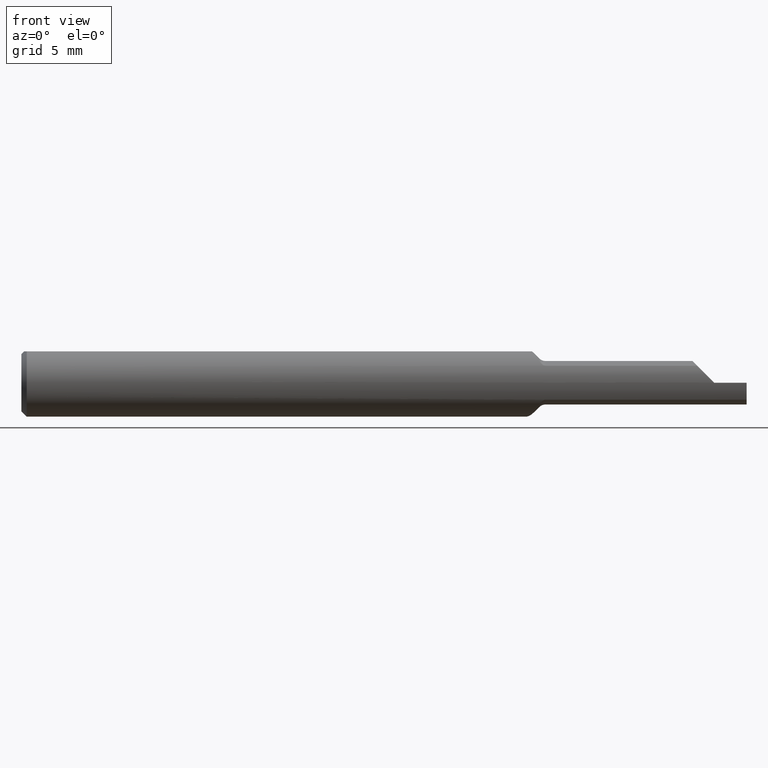
[diagram: clean part render]
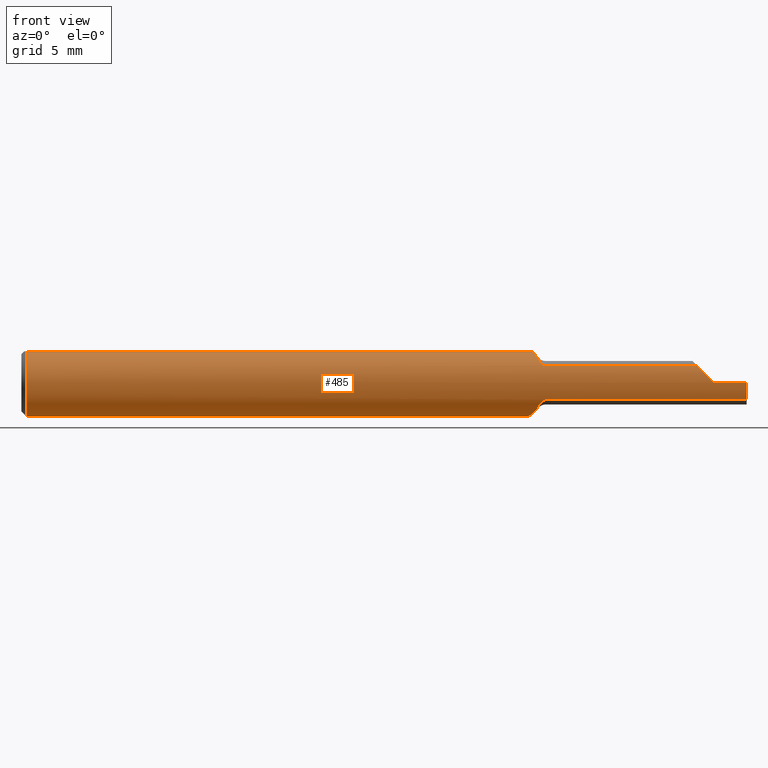
[diagram: same view with one face highlighted and labeled with its STEP entity id]
A machine part, front view. The second image highlights one B-rep face of the part: STEP entity #485.
In plain terms, the highlighted cylindrical surface (edge-blend (fillet) strip) has radius 2.3774 mm, axis along (-1, -0, -0).
Its self-contained STEP definition (entity closure, byte-faithful):
#1 = CARTESIAN_POINT ( 'NONE',  ( 1.401162578112211898, -0.02137516006684752473, -0.09132136495557872935 ) ) ;
#2 = CARTESIAN_POINT ( 'NONE',  ( 1.863470928347331190, -0.08098532110091748171, 0.04692907165266847758 ) ) ;
#7 = ORIENTED_EDGE ( 'NONE', *, *, #558, .F. ) ;
#9 = CARTESIAN_POINT ( 'NONE',  ( 1.373563078640440027, 0.04680750307691909640, 0.08129727678532755464 ) ) ;
#16 = B_SPLINE_CURVE_WITH_KNOTS ( 'NONE', 3,
 ( #386, #636, #788, #805 ),
 .UNSPECIFIED., .F., .F.,
 ( 4, 4 ),
 ( 5.729164479846337672E-07, 0.0002485545944389308645 ),
 .UNSPECIFIED. ) ;
#18 = CARTESIAN_POINT ( 'NONE',  ( 0.01499999999999997689, 0.000000000000000000, -0.09360000000000001652 ) ) ;
#22 = VERTEX_POINT ( 'NONE', #18 ) ;
#59 = CARTESIAN_POINT ( 'NONE',  ( 1.385742326738735430, 0.01455546558514134343, -0.09266009913134311271 ) ) ;
#63 = CARTESIAN_POINT ( 'NONE',  ( 1.427677669529663351, -0.07029385114728027573, -0.06180400060581841409 ) ) ;
#64 = CARTESIAN_POINT ( 'NONE',  ( 1.358300457160753538, 0.09202461176102584572, -0.01829547249540556045 ) ) ;
#68 = CARTESIAN_POINT ( 'NONE',  ( 1.359020195642278050, 0.08977100142499548630, 0.02728114714779963229 ) ) ;
#79 = CARTESIAN_POINT ( 'NONE',  ( 1.393265014012250669, -0.003655424042671530805, -0.09371940383682354769 ) ) ;
#83 = CARTESIAN_POINT ( 'NONE',  ( 1.412174883036604989, -0.04359999999999999987, -0.08282511696339464602 ) ) ;
#93 = ORIENTED_EDGE ( 'NONE', *, *, #941, .F. ) ;
#97 = VERTEX_POINT ( 'NONE', #852 ) ;
#104 = CIRCLE ( 'NONE', #985, 0.09360000000000001652 ) ;
#113 = CARTESIAN_POINT ( 'NONE',  ( 1.377701525703422858, 0.03551619348973097945, 0.08659999999999998255 ) ) ;
#116 = DIRECTION ( 'NONE',  ( 0.000000000000000000, 0.000000000000000000, -1.000000000000000000 ) ) ;
#123 = VECTOR ( 'NONE', #859, 39.37007874015748143 ) ;
#128 = CARTESIAN_POINT ( 'NONE',  ( 1.412174883036604989, -0.04360000000000000681, 0.08282511696339464602 ) ) ;
#141 = CARTESIAN_POINT ( 'NONE',  ( 1.367491920919019943, 0.06414576699549900951, -0.06845644935455037772 ) ) ;
#145 = CARTESIAN_POINT ( 'NONE',  ( 1.376719064373899792, 0.03812469162702807057, -0.08571015254603478462 ) ) ;
#149 = CARTESIAN_POINT ( 'NONE',  ( 1.365939244946421383, 0.06872653992798641309, -0.06386219844968353543 ) ) ;
#156 = ORIENTED_EDGE ( 'NONE', *, *, #902, .T. ) ;
#158 = CARTESIAN_POINT ( 'NONE',  ( 1.369879818681998040, 0.05722188270721517700, 0.07433603228884130831 ) ) ;
#161 = CARTESIAN_POINT ( 'NONE',  ( 1.445355339059327227, -0.08098532110091744007, 0.04692907165266853309 ) ) ;
#162 = CARTESIAN_POINT ( 'NONE',  ( 1.445355339059327227, -0.08098532110091744007, -0.04692907165266853309 ) ) ;
#169 = VECTOR ( 'NONE', #857, 39.37007874015748143 ) ;
#174 = EDGE_CURVE ( 'NONE', #854, #384, #423, .T. ) ;
#178 = ORIENTED_EDGE ( 'NONE', *, *, #921, .F. ) ;
#180 = CARTESIAN_POINT ( 'NONE',  ( 1.910000000000000142, -0.09359999999999998876, -6.429183357567478880E-17 ) ) ;
#183 = CARTESIAN_POINT ( 'NONE',  ( 1.692500000000000115, -0.08098532110091744007, -0.04692907165266853309 ) ) ;
#184 = ORIENTED_EDGE ( 'NONE', *, *, #782, .T. ) ;
#197 = CARTESIAN_POINT ( 'NONE',  ( 1.417429827598531089, -0.05334323113763462382, 0.07712124314794462088 ) ) ;
#198 = DIRECTION ( 'NONE',  ( 0.000000000000000000, 0.000000000000000000, 1.000000000000000000 ) ) ;
#203 = AXIS2_PLACEMENT_3D ( 'NONE', #521, #856, #116 ) ;
#215 = VERTEX_POINT ( 'NONE', #2 ) ;
#217 = CARTESIAN_POINT ( 'NONE',  ( 1.398495826740103309, -0.01554707447101391984, -0.09249312004605585169 ) ) ;
#221 = CARTESIAN_POINT ( 'NONE',  ( 1.406623605259440080, -0.03278656602106057305, -0.08787223824268955430 ) ) ;
#228 = DIRECTION ( 'NONE',  ( -1.000000000000000000, -0.000000000000000000, -0.000000000000000000 ) ) ;
#235 = LINE ( 'NONE', #979, #252 ) ;
#240 = CARTESIAN_POINT ( 'NONE',  ( 1.893560996053938350, -0.09352889250011661715, 0.01683900394606149126 ) ) ;
#242 = ORIENTED_EDGE ( 'NONE', *, *, #831, .T. ) ;
#243 = CARTESIAN_POINT ( 'NONE',  ( 1.361475077763426134, 0.08217488604661306317, 0.04527857650729982808 ) ) ;
#247 = CARTESIAN_POINT ( 'NONE',  ( 1.417431899142503671, -0.05334778958292699796, -0.07712048455225353760 ) ) ;
#252 = VECTOR ( 'NONE', #1055, 39.37007874015748143 ) ;
#253 = CARTESIAN_POINT ( 'NONE',  ( 1.440944544278904837, -0.08054755630905487129, 0.04769340736591577007 ) ) ;
#269 = DIRECTION ( 'NONE',  ( -1.000000000000000000, -0.000000000000000000, -0.000000000000000000 ) ) ;
#270 = LINE ( 'NONE', #870, #169 ) ;
#273 = VERTEX_POINT ( 'NONE', #468 ) ;
#274 = DIRECTION ( 'NONE',  ( 1.000000000000000000, -0.000000000000000000, -0.000000000000000000 ) ) ;
#275 = CARTESIAN_POINT ( 'NONE',  ( 1.427677669529663795, -0.07029385114728030348, 0.06180400060581841409 ) ) ;
#283 = EDGE_CURVE ( 'NONE', #497, #854, #235, .T. ) ;
#282 = B_SPLINE_CURVE_WITH_KNOTS ( 'NONE', 3,
 ( #161, #486, #253, #408, #660, #821, #833, #581 ),
 .UNSPECIFIED., .F., .F.,
 ( 4, 2, 2, 4 ),
 ( 0.000000000000000000, 0.0001696820906343262628, 0.0003393641812686525256, 0.0006787283625373182784 ),
 .UNSPECIFIED. ) ;
#287 = CARTESIAN_POINT ( 'NONE',  ( 1.440919469471275471, -0.08054306570030630996, -0.04770147238164971354 ) ) ;
#289 = FACE_OUTER_BOUND ( 'NONE', #919, .T. ) ;
#295 = DIRECTION ( 'NONE',  ( 1.000000000000000000, -0.000000000000000000, -0.000000000000000000 ) ) ;
#301 = CARTESIAN_POINT ( 'NONE',  ( 1.357730217382799420, 0.09381949476875170446, 0.001379171797657438147 ) ) ;
#313 = CARTESIAN_POINT ( 'NONE',  ( 1.362096236419457984, 0.08028148374112675789, -0.04856492361454641665 ) ) ;
#319 = CIRCLE ( 'NONE', #203, 0.09360000000000001652 ) ;
#322 = CARTESIAN_POINT ( 'NONE',  ( 1.877694541276184292, -0.08922756724162471398, 0.03270545872381525748 ) ) ;
#332 = VERTEX_POINT ( 'NONE', #494 ) ;
#333 = CARTESIAN_POINT ( 'NONE',  ( 1.412174883036604989, -0.04360000000000000681, 0.08282511696339464602 ) ) ;
#350 = LINE ( 'NONE', #775, #645 ) ;
#354 = VERTEX_POINT ( 'NONE', #569 ) ;
#362 = CARTESIAN_POINT ( 'NONE',  ( 2.000000000000000000, -0.09359999999999989162, -6.429183357567480113E-17 ) ) ;
#375 = CARTESIAN_POINT ( 'NONE',  ( 1.372725758621181180, 0.04914086561991816426, -0.07990555479593192123 ) ) ;
#380 = CARTESIAN_POINT ( 'NONE',  ( 1.357960659897338385, 0.09309458096140457717, -0.01172171954671197454 ) ) ;
#384 = VERTEX_POINT ( 'NONE', #926 ) ;
#386 = CARTESIAN_POINT ( 'NONE',  ( 1.408023520836405362, -0.03551619348973036189, 0.08659999999999998255 ) ) ;
#388 = VERTEX_POINT ( 'NONE', #162 ) ;
#391 = CARTESIAN_POINT ( 'NONE',  ( 1.910000000000000142, 0.000000000000000000, 0.000000000000000000 ) ) ;
#399 = CARTESIAN_POINT ( 'NONE',  ( 1.368166364789387357, 0.06218498935449462417, 0.07024812893643285483 ) ) ;
#408 = CARTESIAN_POINT ( 'NONE',  ( 1.437270107998831037, -0.07922514269342444126, 0.04985926893505449042 ) ) ;
#412 = CARTESIAN_POINT ( 'NONE',  ( 2.000000000000000000, 0.03551619348973089618, 0.08659999999999998255 ) ) ;
#417 = CARTESIAN_POINT ( 'NONE',  ( 1.427677669529663351, -0.07029385114728027573, -0.06180400060581841409 ) ) ;
#422 = B_SPLINE_CURVE_WITH_KNOTS ( 'NONE', 3,
 ( #63, #793, #694, #787, #1034, #287, #613, #954 ),
 .UNSPECIFIED., .F., .F.,
 ( 4, 2, 2, 4 ),
 ( 0.000000000000000000, 0.0003360319779195199748, 0.0005040479668792864675, 0.0006720639558390530685 ),
 .UNSPECIFIED. ) ;
#423 = CIRCLE ( 'NONE', #988, 0.09360000000000001652 ) ;
#433 = LINE ( 'NONE', #183, #123 ) ;
#450 = CARTESIAN_POINT ( 'NONE',  ( 2.000000000000000000, 0.000000000000000000, 0.000000000000000000 ) ) ;
#457 = ORIENTED_EDGE ( 'NONE', *, *, #174, .T. ) ;
#460 = CARTESIAN_POINT ( 'NONE',  ( 1.412174883036604989, -0.04359999999999999987, -0.08282511696339464602 ) ) ;
#462 = CARTESIAN_POINT ( 'NONE',  ( 1.359393831565363531, 0.08861025287414564522, -0.03084601382962852759 ) ) ;
#468 = CARTESIAN_POINT ( 'NONE',  ( 1.408023520836405362, -0.03551619348973036189, 0.08659999999999998255 ) ) ;
#470 = CARTESIAN_POINT ( 'NONE',  ( 1.360511327969830431, 0.08514595224235765869, 0.03941142604992334958 ) ) ;
#478 = DIRECTION ( 'NONE',  ( 0.000000000000000000, 0.000000000000000000, 1.000000000000000000 ) ) ;
#485 = ADVANCED_FACE ( 'NONE', ( #289 ), #696, .T. ) ;
#486 = CARTESIAN_POINT ( 'NONE',  ( 1.443089284779638160, -0.08098532110091745395, 0.04692907165266853309 ) ) ;
#491 = CARTESIAN_POINT ( 'NONE',  ( 1.365120089012977100, 0.07115311157076061044, 0.06114742213607372856 ) ) ;
#494 = CARTESIAN_POINT ( 'NONE',  ( 1.445355339059327227, -0.08098532110091744007, 0.04692907165266853309 ) ) ;
#497 = VERTEX_POINT ( 'NONE', #362 ) ;
#504 = ORIENTED_EDGE ( 'NONE', *, *, #648, .T. ) ;
#509 = VECTOR ( 'NONE', #605, 39.37007874015748143 ) ;
#521 = CARTESIAN_POINT ( 'NONE',  ( 2.000000000000000000, 0.000000000000000000, 0.000000000000000000 ) ) ;
#532 = CARTESIAN_POINT ( 'NONE',  ( 1.425214609688117084, -0.06649066471102273168, 0.06612962060800448016 ) ) ;
#540 = CARTESIAN_POINT ( 'NONE',  ( 1.412174883036604989, -0.04359999999999999987, -0.08282511696339464602 ) ) ;
#546 = ORIENTED_EDGE ( 'NONE', *, *, #820, .T. ) ;
#552 = VERTEX_POINT ( 'NONE', #113 ) ;
#554 = CARTESIAN_POINT ( 'NONE',  ( 1.360152022803403637, 0.08625128397210292397, -0.03693757504936105718 ) ) ;
#558 = EDGE_CURVE ( 'NONE', #332, #215, #270, .T. ) ;
#563 = CARTESIAN_POINT ( 'NONE',  ( 1.375549505070180922, 0.04130584341941011262, 0.08422556204225985221 ) ) ;
#567 = ORIENTED_EDGE ( 'NONE', *, *, #710, .F. ) ;
#569 = CARTESIAN_POINT ( 'NONE',  ( 0.01499999999999997689, 0.03551619348973089618, 0.08659999999999998255 ) ) ;
#574 = VERTEX_POINT ( 'NONE', #690 ) ;
#576 = CARTESIAN_POINT ( 'NONE',  ( 1.863470928347331190, -0.08098532110091748171, 0.04692907165266847758 ) ) ;
#581 = CARTESIAN_POINT ( 'NONE',  ( 1.427677669529663795, -0.07029385114728030348, 0.06180400060581841409 ) ) ;
#587 = CARTESIAN_POINT ( 'NONE',  ( 1.427677669529663795, -0.07029385114728030348, 0.06180400060581841409 ) ) ;
#605 = DIRECTION ( 'NONE',  ( 1.000000000000000000, 0.000000000000000000, 0.000000000000000000 ) ) ;
#613 = CARTESIAN_POINT ( 'NONE',  ( 1.443082417335663781, -0.08098532110091741232, -0.04692907165266856778 ) ) ;
#617 = B_SPLINE_CURVE_WITH_KNOTS ( 'NONE', 3,
 ( #540, #885, #221, #1, #217, #79, #1050, #59, #630, #720, #145, #375, #879, #141, #149, #1045, #313, #554, #462, #64, #380, #301, #625, #955, #68, #470, #243, #915, #491, #399, #158, #9, #563, #904 ),
 .UNSPECIFIED., .F., .F.,
 ( 4, 2, 2, 2, 2, 2, 2, 2, 2, 2, 2, 2, 2, 2, 2, 2, 4 ),
 ( 0.001449473354703524966, 0.001946690950049000460, 0.002443908545394475954, 0.002941126140739951447, 0.003438343736085426941, 0.003935561331430902435, 0.004432778926776377929, 0.004929996522121853422, 0.005427214117467328916, 0.005924431712812804410, 0.006421649308158279904, 0.006918866903503755397, 0.007416084498849231758, 0.007913302094194704650, 0.008410519689540180144, 0.008907737284885655638, 0.009404954880231131131 ),
 .UNSPECIFIED. ) ;
#619 = VERTEX_POINT ( 'NONE', #275 ) ;
#621 =( BOUNDED_CURVE ( )  B_SPLINE_CURVE ( 3, ( #816, #240, #322, #576 ),
 .UNSPECIFIED., .F., .T. ) 
 B_SPLINE_CURVE_WITH_KNOTS ( ( 4, 4 ),
 ( 4.716662497666021636, 5.237580787391522108 ),
 .UNSPECIFIED. ) 
 CURVE ( )  GEOMETRIC_REPRESENTATION_ITEM ( )  RATIONAL_B_SPLINE_CURVE ( ( 1.000000000000000000, 0.9775145593731180416, 0.9775145593731180416, 1.000000000000000000 ) ) 
 REPRESENTATION_ITEM ( '' )  );
#625 = CARTESIAN_POINT ( 'NONE',  ( 1.357832322352278132, 0.09349711215871500669, 0.007900531263943064153 ) ) ;
#630 = CARTESIAN_POINT ( 'NONE',  ( 1.383392098380111790, 0.02051992070829877779, -0.09152830773666503772 ) ) ;
#636 = CARTESIAN_POINT ( 'NONE',  ( 1.409412477529317531, -0.03828698621588681739, 0.08546364883854394578 ) ) ;
#642 = EDGE_CURVE ( 'NONE', #273, #767, #16, .T. ) ;
#645 = VECTOR ( 'NONE', #269, 39.37007874015748143 ) ;
#648 = EDGE_CURVE ( 'NONE', #22, #354, #104, .T. ) ;
#652 = ORIENTED_EDGE ( 'NONE', *, *, #1061, .F. ) ;
#653 = B_SPLINE_CURVE_WITH_KNOTS ( 'NONE', 3,
 ( #128, #937, #197, #946, #532, #587 ),
 .UNSPECIFIED., .F., .F.,
 ( 4, 2, 4 ),
 ( 0.0002485545944389308645, 0.0007226124841471872652, 0.001196670373855444154 ),
 .UNSPECIFIED. ) ;
#660 = CARTESIAN_POINT ( 'NONE',  ( 1.435702228276975134, -0.07835280535911735844, 0.05123303017220874611 ) ) ;
#690 = CARTESIAN_POINT ( 'NONE',  ( 0.01499999999999997689, -0.03551619348973089618, 0.08659999999999998255 ) ) ;
#694 = CARTESIAN_POINT ( 'NONE',  ( 1.431500133130179098, -0.07537161458921129431, -0.05560766583996936546 ) ) ;
#696 = CYLINDRICAL_SURFACE ( 'NONE', #847, 0.09360000000000001652 ) ;
#710 = EDGE_CURVE ( 'NONE', #996, #552, #617, .T. ) ;
#720 = CARTESIAN_POINT ( 'NONE',  ( 1.378890268427389376, 0.03227618288569650273, -0.08807239227670383974 ) ) ;
#724 = EDGE_CURVE ( 'NONE', #773, #996, #817, .T. ) ;
#729 = CARTESIAN_POINT ( 'NONE',  ( 1.425228489598879822, -0.06651209654449298514, -0.06610524474079507162 ) ) ;
#755 = EDGE_CURVE ( 'NONE', #384, #215, #621, .T. ) ;
#760 = ORIENTED_EDGE ( 'NONE', *, *, #755, .T. ) ;
#767 = VERTEX_POINT ( 'NONE', #333 ) ;
#769 = DIRECTION ( 'NONE',  ( -1.000000000000000000, -0.000000000000000000, -0.000000000000000000 ) ) ;
#773 = VERTEX_POINT ( 'NONE', #1003 ) ;
#775 = CARTESIAN_POINT ( 'NONE',  ( 2.000000000000000000, -0.03551619348973089618, 0.08659999999999998255 ) ) ;
#782 = EDGE_CURVE ( 'NONE', #332, #619, #282, .T. ) ;
#787 = CARTESIAN_POINT ( 'NONE',  ( 1.435639508677811094, -0.07831503026254452160, -0.05129082989646373270 ) ) ;
#788 = CARTESIAN_POINT ( 'NONE',  ( 1.410796085082294482, -0.04098075454507678350, 0.08420391491770506942 ) ) ;
#793 = CARTESIAN_POINT ( 'NONE',  ( 1.429434680320812889, -0.07300683420053004358, -0.05871834231443140428 ) ) ;
#801 = DIRECTION ( 'NONE',  ( 0.000000000000000000, 0.000000000000000000, -1.000000000000000000 ) ) ;
#805 = CARTESIAN_POINT ( 'NONE',  ( 1.412174883036604989, -0.04360000000000000681, 0.08282511696339464602 ) ) ;
#816 = CARTESIAN_POINT ( 'NONE',  ( 1.910000000000000142, -0.09359914529524315796, 0.0004000000000000088012 ) ) ;
#817 = B_SPLINE_CURVE_WITH_KNOTS ( 'NONE', 3,
 ( #417, #729, #998, #247, #899, #83 ),
 .UNSPECIFIED., .F., .F.,
 ( 4, 2, 4 ),
 ( 0.0005004335223145919657, 0.0009749534385090584659, 0.001449473354703524966 ),
 .UNSPECIFIED. ) ;
#820 = EDGE_CURVE ( 'NONE', #354, #552, #838, .T. ) ;
#821 = CARTESIAN_POINT ( 'NONE',  ( 1.431544521438683937, -0.07541641485153463553, 0.05554661397440845139 ) ) ;
#825 = CIRCLE ( 'NONE', #986, 0.09360000000000001652 ) ;
#830 = ORIENTED_EDGE ( 'NONE', *, *, #283, .T. ) ;
#831 = EDGE_CURVE ( 'NONE', #574, #22, #825, .T. ) ;
#833 = CARTESIAN_POINT ( 'NONE',  ( 1.429435438298165995, -0.07300800458589495889, 0.05871701115635388768 ) ) ;
#838 = LINE ( 'NONE', #412, #509 ) ;
#847 = AXIS2_PLACEMENT_3D ( 'NONE', #450, #769, #198 ) ;
#852 = CARTESIAN_POINT ( 'NONE',  ( 2.000000000000000000, -0.08098532110091745395, -0.04692907165266857472 ) ) ;
#854 = VERTEX_POINT ( 'NONE', #180 ) ;
#856 = DIRECTION ( 'NONE',  ( 1.000000000000000000, 0.000000000000000000, 0.000000000000000000 ) ) ;
#857 = DIRECTION ( 'NONE',  ( 1.000000000000000000, 0.000000000000000000, 0.000000000000000000 ) ) ;
#859 = DIRECTION ( 'NONE',  ( -1.000000000000000000, -0.000000000000000000, -0.000000000000000000 ) ) ;
#870 = CARTESIAN_POINT ( 'NONE',  ( 1.692500000000000115, -0.08098532110091744007, 0.04692907165266853309 ) ) ;
#875 = CARTESIAN_POINT ( 'NONE',  ( 0.01499999999999997689, 0.000000000000000000, 0.000000000000000000 ) ) ;
#879 = CARTESIAN_POINT ( 'NONE',  ( 1.370885649790712923, 0.05435289654770198570, -0.07646389683077740862 ) ) ;
#885 = CARTESIAN_POINT ( 'NONE',  ( 1.409416727823433524, -0.03836044660242828724, -0.08558327217656612473 ) ) ;
#899 = CARTESIAN_POINT ( 'NONE',  ( 1.414807130151062076, -0.04860037098925391874, -0.08019286984893751746 ) ) ;
#902 = EDGE_CURVE ( 'NONE', #273, #574, #350, .T. ) ;
#904 = CARTESIAN_POINT ( 'NONE',  ( 1.377701525703422858, 0.03551619348973097945, 0.08659999999999998255 ) ) ;
#906 = ORIENTED_EDGE ( 'NONE', *, *, #724, .F. ) ;
#915 = CARTESIAN_POINT ( 'NONE',  ( 1.363785744349288009, 0.07515970287789011661, 0.05615941996324859409 ) ) ;
#919 = EDGE_LOOP ( 'NONE', ( #652, #93, #830, #457, #760, #7, #184, #178, #965, #156, #242, #504, #546, #567, #906, #1052 ) ) ;
#921 = EDGE_CURVE ( 'NONE', #767, #619, #653, .T. ) ;
#924 = DIRECTION ( 'NONE',  ( 0.000000000000000000, 0.000000000000000000, -1.000000000000000000 ) ) ;
#926 = CARTESIAN_POINT ( 'NONE',  ( 1.910000000000000142, -0.09359914529524315796, 0.0004000000000000088012 ) ) ;
#937 = CARTESIAN_POINT ( 'NONE',  ( 1.414810682801531216, -0.04860711981243305557, 0.08018931719846866812 ) ) ;
#941 = EDGE_CURVE ( 'NONE', #497, #97, #319, .T. ) ;
#946 = CARTESIAN_POINT ( 'NONE',  ( 1.422622669439097765, -0.06227274567056488574, 0.07010914062757185594 ) ) ;
#954 = CARTESIAN_POINT ( 'NONE',  ( 1.445355339059327227, -0.08098532110091744007, -0.04692907165266853309 ) ) ;
#955 = CARTESIAN_POINT ( 'NONE',  ( 1.358476095694653774, 0.09147652334571192145, 0.02088478041190022089 ) ) ;
#965 = ORIENTED_EDGE ( 'NONE', *, *, #642, .F. ) ;
#979 = CARTESIAN_POINT ( 'NONE',  ( 2.000000000000000000, -0.09360000000000001652, -6.429183357567480113E-17 ) ) ;
#985 = AXIS2_PLACEMENT_3D ( 'NONE', #875, #295, #801 ) ;
#986 = AXIS2_PLACEMENT_3D ( 'NONE', #1025, #274, #924 ) ;
#988 = AXIS2_PLACEMENT_3D ( 'NONE', #391, #228, #478 ) ;
#996 = VERTEX_POINT ( 'NONE', #460 ) ;
#998 = CARTESIAN_POINT ( 'NONE',  ( 1.422653976226357697, -0.06232557759648701956, -0.07006481405258215001 ) ) ;
#1003 = CARTESIAN_POINT ( 'NONE',  ( 1.427677669529663351, -0.07029385114728027573, -0.06180400060581841409 ) ) ;
#1015 = EDGE_CURVE ( 'NONE', #773, #388, #422, .T. ) ;
#1025 = CARTESIAN_POINT ( 'NONE',  ( 0.01499999999999997689, 0.000000000000000000, 0.000000000000000000 ) ) ;
#1034 = CARTESIAN_POINT ( 'NONE',  ( 1.437216637231161664, -0.07920126791852319381, -0.04989764583504369827 ) ) ;
#1045 = CARTESIAN_POINT ( 'NONE',  ( 1.363252824815949893, 0.07676139857450861581, -0.05393890405065062538 ) ) ;
#1050 = CARTESIAN_POINT ( 'NONE',  ( 1.390674899065930781, 0.002473900429620041596, -0.09376372094842916338 ) ) ;
#1052 = ORIENTED_EDGE ( 'NONE', *, *, #1015, .T. ) ;
#1055 = DIRECTION ( 'NONE',  ( -1.000000000000000000, -0.000000000000000000, -0.000000000000000000 ) ) ;
#1061 = EDGE_CURVE ( 'NONE', #97, #388, #433, .T. ) ;